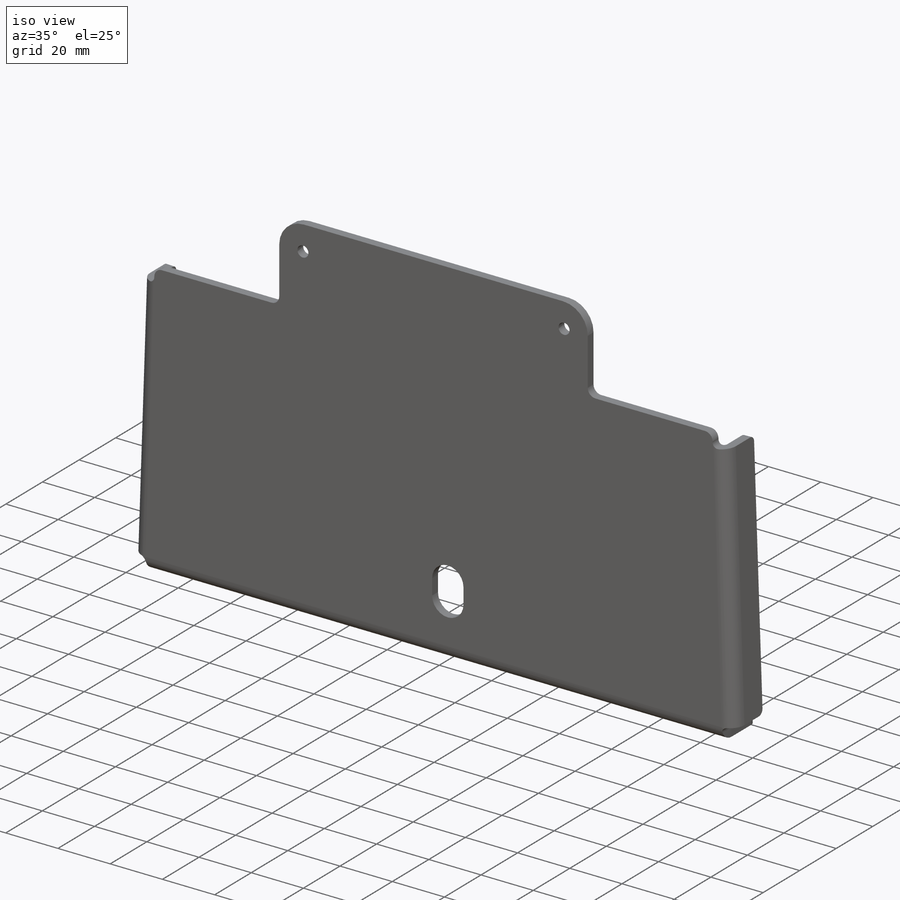
[diagram: iso view]
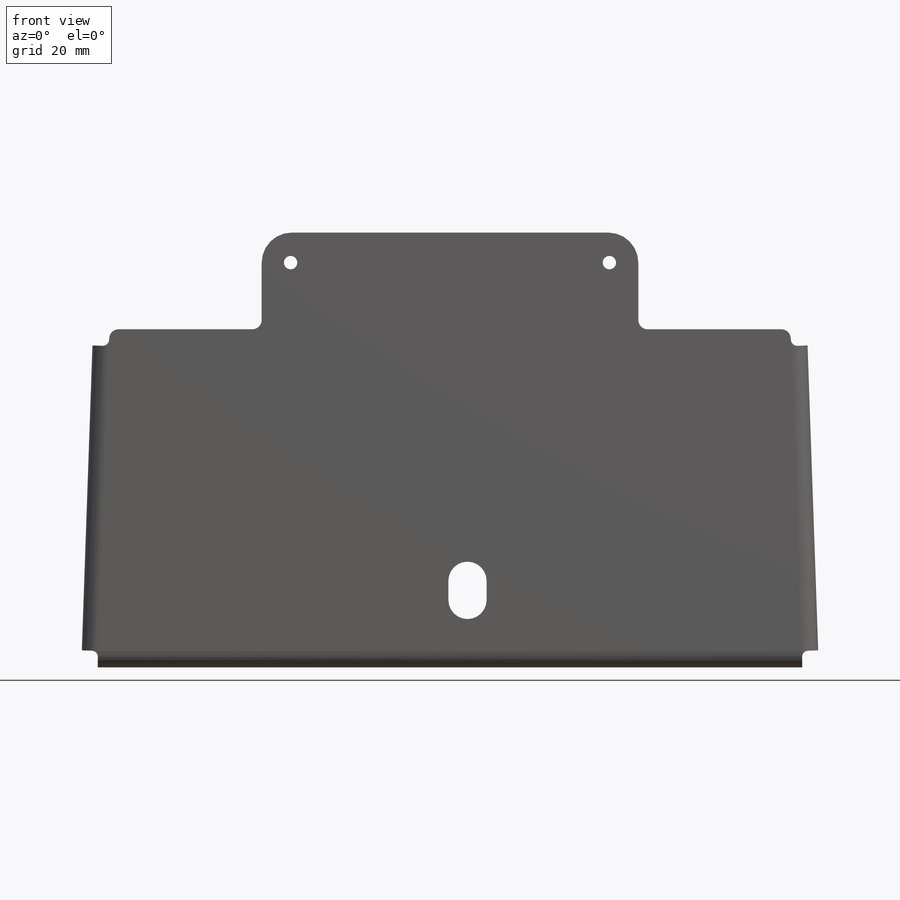
[diagram: front view]
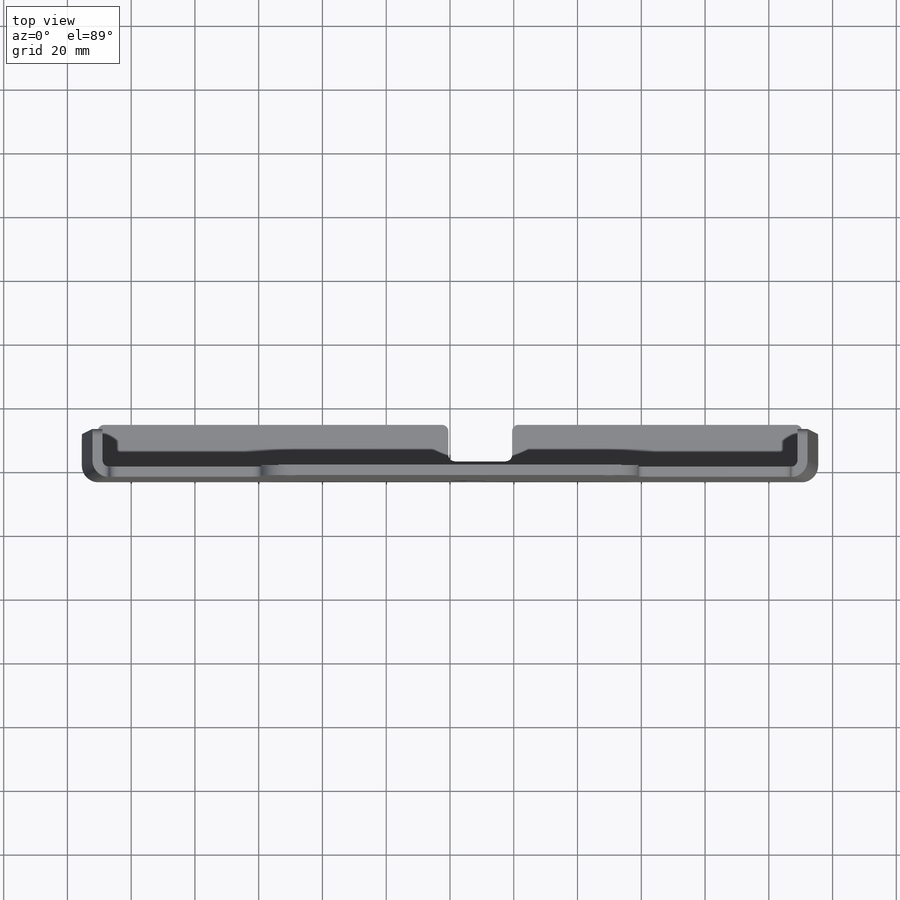
[diagram: top view]
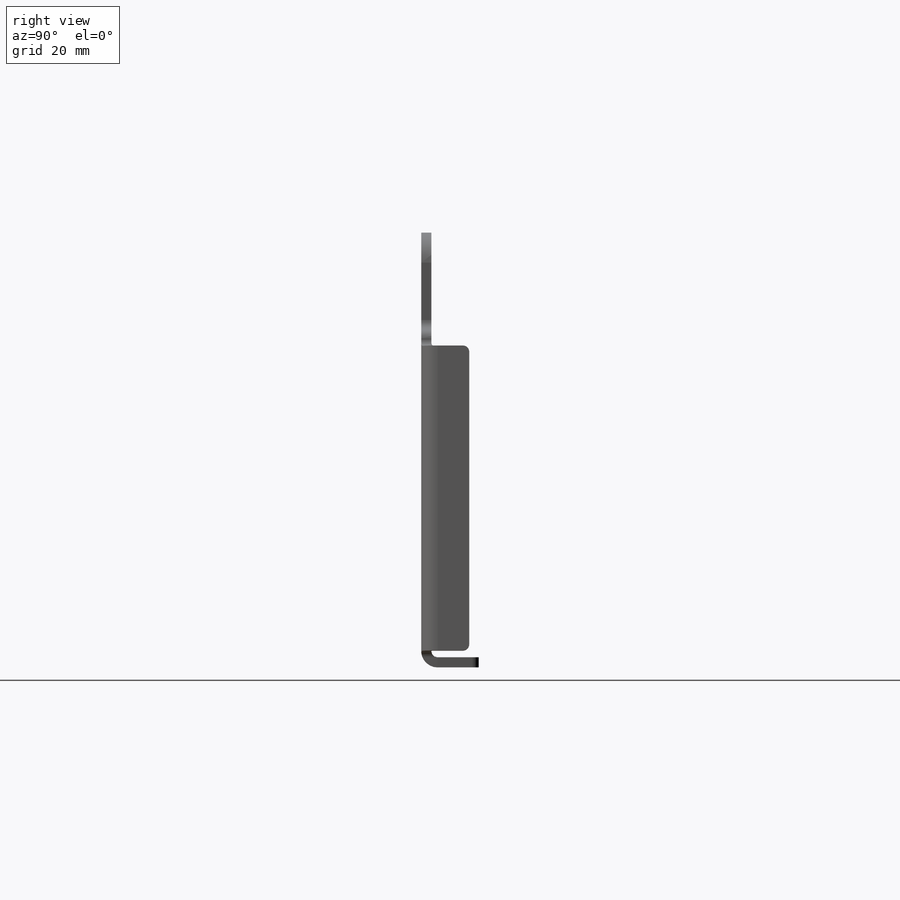
[diagram: right view]
SOLIDWORKS PART (.sldprt)
format: sldprt  version: not decoded by parser v0  size: 2,010,112 bytes
history: native  units: mm
features: sketch x24, sheet_metal_op x10, mirror x7, fillet x4, plane x3, cut_extrude x3, material x1 + 9 further entries (+13 scaffold rows collapsed; 7 parser-record rows omitted)
feature tree (81):
  scaffold x13  (default folders/planes/origin — collapsed)
  material  "Material <not specified>"
  plane  "Acrylic Thickness Plane"  Offset=3.175mm
  plane  "Interior Lower Plane"
  plane  "Interior Upper Plane"
  sketch  "Case - Right Plane"  dims[c1.D1=~29.150168mm c2.D1=~48.487091deg c3.D1=~785.398163mm]
  sketch  "Case - Front Plane"  dims[D1=4.2mm D2=~10.091783mm]
  sketch  "Sketch2"  dims[c1.D1=5.0mm c1.D2=4.2mm c2.D1=3.0mm c2.D2=3.0mm c3.D1=2.0mm c3.D2=0.5 c3.D3=0.0deg c3.D6=~14.323945deg]
  sheet_metal_op  "Back Plate"
  sketch  "Sketch58"  dims[c1.D1=2.0mm c1.D4=~1570.796327mm c1.D5=1.0 c1.D8=~0.085944deg c1.D9=~0.085944deg c2.D1=2.0mm c2.D2=~28.64789deg c2.D3=0.0deg c2.D6=10.0mm c2.D7=~18.068711mm]
  sketch  "Sketch95"  dims[D1=110.0mm D2=20.0mm D3=11.5mm]
  cut_extrude  "Battery Status Button Hole"  [1 undecoded]
  fillet  "Battery Status Button Fillets"  Radius=2mm
  sketch  "Sketch96"  dims[D1=6.0mm D4=2.0mm D2=21.0mm D3=18.0mm]
  cut_extrude  "Battery Status Hole - Slot"  [1 undecoded]
  sketch  "Sketch97"  dims[D1=2.0mm]
  cut_extrude  "Battery Status Hole - Rounded Rectangle"  Depth=0 Left Flange=0
  sketch  "Sketch94"  dims[D1=0.1mm]
  sheet_metal_op  "EdgeBend21"
  mirror  "Right Flange"
  sheet_metal_op  "MirrorBend3"
  fillet  "Edge Fillets"  Radius=2mm
  fillet  "Corner Fillets - Assembled"  Radius=2mm
  sketch  "Bend-Lines5"
  sketch  "Bounding-Box5"
  fillet  "Corner Fillets - Flat"  Radius=2mm
  sheet_metal_op  "Sheet-Metal6"
  "Flat-Pattern6"
  sketch  "Bend-Lines6"
  sketch  "Bounding-Box6"
  parser-record x7  (decoder bookkeeping rows leaked as tree rows — omitted from the tree; the rows remain in map.json)
  mirror  "Sheet-Metal15"
  sheet_metal_op  "Flat-Pattern6"
  sketch  "Bend-Lines6"
  sketch  "Bounding-Box6"
  mirror  "Sheet-Metal25"
  sheet_metal_op  "Flat-Pattern6"
  sketch  "Bend-Lines6"
  sketch  "Bounding-Box6"
  "Flatten-<EdgeBend10>1"
  "Flatten-<EdgeBend21>1"
  mirror  "Sheet-Metal29"
  sheet_metal_op  "Flat-Pattern6"
  sketch  "Bend-Lines6"
  sketch  "Bounding-Box6"
  "Flatten-<EdgeBend10>1"
  "Flatten-<EdgeBend21>1"
  "Flatten-<MirrorBend3>1"
  mirror  "Sheet-Metal30"
  sheet_metal_op  "Flat-Pattern6"
  sketch  "Bend-Lines6"
  sketch  "Bounding-Box6"
  "Flatten-<EdgeBend10>1"
  mirror  "Sheet-Metal31"
  sheet_metal_op  "Flat-Pattern6"
  sketch  "Bend-Lines6"
  sketch  "Bounding-Box6"
  "Flatten-<EdgeBend10>1"
  mirror  "Sheet-Metal32"
  sheet_metal_op  "Flat-Pattern6"
  sketch  "Bend-Lines6"
  sketch  "Bounding-Box6"
  "Flatten-<EdgeBend10>1"
decode coverage: 13 of 48 modeling features carry decoded parameters; 9 rows unclassified (native names shown)
note: ~ marks probable driven/reference dimensions
note: 2 parameter values undecoded
note: suppression state not decoded; provenance and decode notes live in map.json
